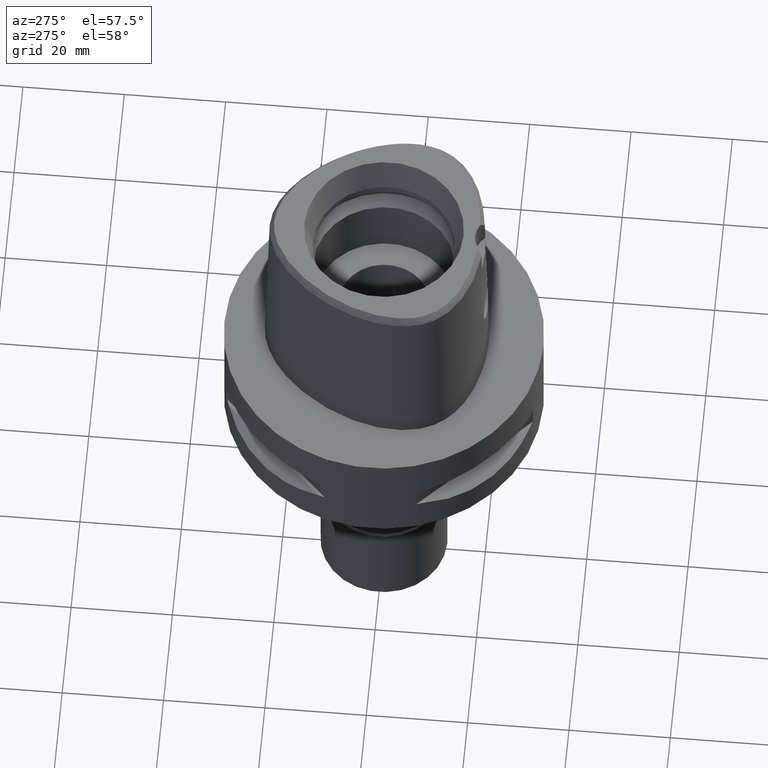
[diagram: clean part render]
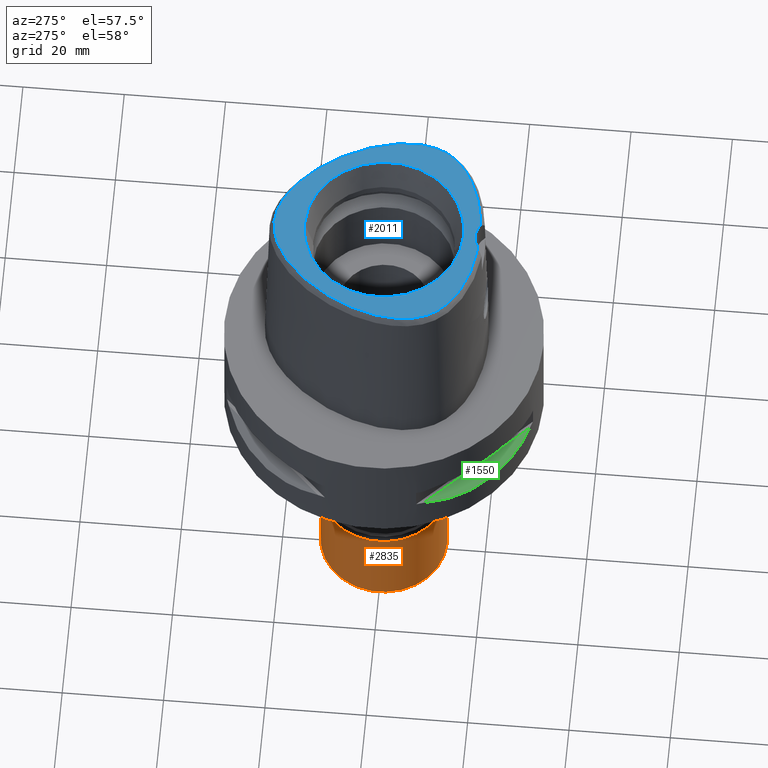
[diagram: same view with three faces highlighted in distinct colors, each labeled with its STEP entity id]
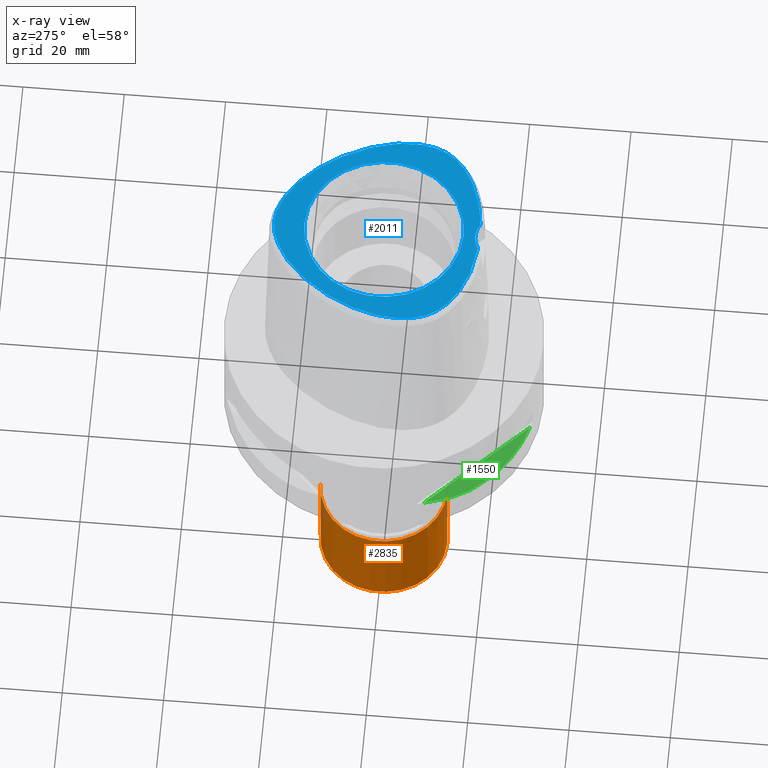
[diagram: x-ray of the same camera — body ghosted, the three highlighted faces saturated]
A machine part, auxiliary view with three faces highlighted in distinct colors.
The next image is the same camera in x-ray (body ghosted, the three faces saturated) — at least one of them is partly hidden behind the body in this view.
Their STEP definitions:

[orange] entity #2835 — the highlighted cylindrical surface (partial cylindrical patch) has radius 12.5 mm, axis along (0, 0, -1).
#87 = VERTEX_POINT ( 'NONE', #3550 ) ;
#200 = ORIENTED_EDGE ( 'NONE', *, *, #4259, .T. ) ;
#230 = ORIENTED_EDGE ( 'NONE', *, *, #3672, .T. ) ;
#245 = DIRECTION ( 'NONE',  ( 0.0000000000000000000, -1.000000000000000000, 0.0000000000000000000 ) ) ;
#264 = DIRECTION ( 'NONE',  ( 0.0000000000000000000, -1.000000000000000000, 0.0000000000000000000 ) ) ;
#346 = AXIS2_PLACEMENT_3D ( 'NONE', #2113, #2845, #245 ) ;
#410 = AXIS2_PLACEMENT_3D ( 'NONE', #1921, #3836, #2706 ) ;
#485 = EDGE_LOOP ( 'NONE', ( #230, #2842, #3767, #200 ) ) ;
#555 = DIRECTION ( 'NONE',  ( 0.0000000000000000000, 0.0000000000000000000, -1.000000000000000000 ) ) ;
#677 = VERTEX_POINT ( 'NONE', #2776 ) ;
#765 = CYLINDRICAL_SURFACE ( 'NONE', #2062, 12.50000000000000000 ) ;
#1015 = VERTEX_POINT ( 'NONE', #4450 ) ;
#1167 = DIRECTION ( 'NONE',  ( 0.0000000000000000000, 0.0000000000000000000, -1.000000000000000000 ) ) ;
#1249 = CARTESIAN_POINT ( 'NONE',  ( 0.0000000000000000000, -12.50000000000000000, -2.000000000000000000 ) ) ;
#1384 = VECTOR ( 'NONE', #555, 1000.000000000000000 ) ;
#1480 = VERTEX_POINT ( 'NONE', #4084 ) ;
#1513 = FACE_OUTER_BOUND ( 'NONE', #485, .T. ) ;
#1921 = CARTESIAN_POINT ( 'NONE',  ( 0.0000000000000000000, 0.0000000000000000000, -20.50000000000000000 ) ) ;
#1963 = DIRECTION ( 'NONE',  ( 0.0000000000000000000, 0.0000000000000000000, -1.000000000000000000 ) ) ;
#2058 = VECTOR ( 'NONE', #1167, 1000.000000000000000 ) ;
#2062 = AXIS2_PLACEMENT_3D ( 'NONE', #3998, #1963, #264 ) ;
#2113 = CARTESIAN_POINT ( 'NONE',  ( 0.0000000000000000000, 0.0000000000000000000, -2.000000000000000000 ) ) ;
#2339 = EDGE_CURVE ( 'NONE', #87, #1480, #3112, .T. ) ;
#2460 = CIRCLE ( 'NONE', #346, 12.50000000000000000 ) ;
#2706 = DIRECTION ( 'NONE',  ( 0.0000000000000000000, 1.000000000000000000, 0.0000000000000000000 ) ) ;
#2776 = CARTESIAN_POINT ( 'NONE',  ( 0.0000000000000000000, 12.50000000000000000, -20.50000000000000000 ) ) ;
#2835 = ADVANCED_FACE ( 'NONE', ( #1513 ), #765, .T. ) ;
#2842 = ORIENTED_EDGE ( 'NONE', *, *, #2339, .F. ) ;
#2845 = DIRECTION ( 'NONE',  ( 0.0000000000000000000, 0.0000000000000000000, -1.000000000000000000 ) ) ;
#3112 = LINE ( 'NONE', #1249, #1384 ) ;
#3550 = CARTESIAN_POINT ( 'NONE',  ( 0.0000000000000000000, -12.50000000000000000, -2.000000000000000000 ) ) ;
#3588 = EDGE_CURVE ( 'NONE', #87, #1015, #2460, .T. ) ;
#3672 = EDGE_CURVE ( 'NONE', #677, #1480, #4593, .T. ) ;
#3767 = ORIENTED_EDGE ( 'NONE', *, *, #3588, .T. ) ;
#3836 = DIRECTION ( 'NONE',  ( 0.0000000000000000000, 0.0000000000000000000, 1.000000000000000000 ) ) ;
#3998 = CARTESIAN_POINT ( 'NONE',  ( 0.0000000000000000000, 0.0000000000000000000, 0.0000000000000000000 ) ) ;
#4084 = CARTESIAN_POINT ( 'NONE',  ( 0.0000000000000000000, -12.50000000000000000, -20.50000000000000000 ) ) ;
#4187 = CARTESIAN_POINT ( 'NONE',  ( 0.0000000000000000000, 12.50000000000000000, -2.000000000000000000 ) ) ;
#4259 = EDGE_CURVE ( 'NONE', #1015, #677, #4271, .T. ) ;
#4271 = LINE ( 'NONE', #4187, #2058 ) ;
#4450 = CARTESIAN_POINT ( 'NONE',  ( 0.0000000000000000000, 12.50000000000000000, -2.000000000000000000 ) ) ;
#4593 = CIRCLE ( 'NONE', #410, 12.50000000000000000 ) ;

[blue] entity #2011 — the highlighted planar face has unit normal (0, 0, 1).
#4 = CARTESIAN_POINT ( 'NONE',  ( -9.524337278002082741, 17.70558492631480974, 37.99999999999495515 ) ) ;
#27 = CARTESIAN_POINT ( 'NONE',  ( 0.0000000000000000000, 0.0000000000000000000, 38.00000000000000000 ) ) ;
#28 = CARTESIAN_POINT ( 'NONE',  ( -15.00295592774084952, -14.82617991125666457, 37.99999999999761258 ) ) ;
#57 = CARTESIAN_POINT ( 'NONE',  ( -15.24692477332508567, 11.25717358966017478, 38.00000000000158451 ) ) ;
#61 = CARTESIAN_POINT ( 'NONE',  ( 1.325020189552928551, 21.61081414409011003, 37.99999999999249667 ) ) ;
#79 = CARTESIAN_POINT ( 'NONE',  ( -12.37132652997173743, -16.34104299088506451, 38.00000000000173372 ) ) ;
#99 = CARTESIAN_POINT ( 'NONE',  ( -16.93638123745217072, -13.22593246128182365, 37.99999999999351985 ) ) ;
#103 = CARTESIAN_POINT ( 'NONE',  ( 18.31883910943282956, -11.58595831188439362, 37.99999999999624123 ) ) ;
#128 = CARTESIAN_POINT ( 'NONE',  ( 19.78323211893058442, -8.541156231036104884, 37.99999999999651834 ) ) ;
#173 = CARTESIAN_POINT ( 'NONE',  ( 16.36283630828729940, -13.76236604534941854, 38.00000000000044764 ) ) ;
#199 = CARTESIAN_POINT ( 'NONE',  ( 7.606839420238130423, -18.00827588386267308, 37.99999999999197087 ) ) ;
#266 = DIRECTION ( 'NONE',  ( 0.0000000000000000000, 1.000000000000000000, 0.0000000000000000000 ) ) ;
#367 = AXIS2_PLACEMENT_3D ( 'NONE', #2131, #3571, #266 ) ;
#377 = CARTESIAN_POINT ( 'NONE',  ( -8.930096025510302127, -17.65000298921670208, 37.99999999999946709 ) ) ;
#396 = DIRECTION ( 'NONE',  ( 0.0000000000000000000, -1.000000000000000000, 0.0000000000000000000 ) ) ;
#397 = CARTESIAN_POINT ( 'NONE',  ( -2.841965291530696103, -18.76757795572144971, 38.00000000000010658 ) ) ;
#419 = CARTESIAN_POINT ( 'NONE',  ( -17.60426951086849456, 7.098774535281554776, 37.99999999999575806 ) ) ;
#443 = CARTESIAN_POINT ( 'NONE',  ( -7.655222869372528827, 19.09452359225932128, 37.99999999999520384 ) ) ;
#468 = CARTESIAN_POINT ( 'NONE',  ( -17.91005512243877718, -12.13778127739642620, 38.00000000000261480 ) ) ;
#484 = CIRCLE ( 'NONE', #869, 15.71487483155999776 ) ;
#493 = CARTESIAN_POINT ( 'NONE',  ( 7.655962789344366470, 19.09402979099463238, 38.00000000000157740 ) ) ;
#539 = CARTESIAN_POINT ( 'NONE',  ( 10.17751632998770894, -17.24426134458748194, 37.99999999999317879 ) ) ;
#560 = CARTESIAN_POINT ( 'NONE',  ( 19.98468477322977677, -7.807876343103702155, 37.99999999999689493 ) ) ;
#727 = CARTESIAN_POINT ( 'NONE',  ( -11.46564124494143933, 15.92741340513346238, 37.99999999999413092 ) ) ;
#753 = CARTESIAN_POINT ( 'NONE',  ( -4.254559144977506868, 20.86660163697322545, 37.99999999999995737 ) ) ;
#772 = CARTESIAN_POINT ( 'NONE',  ( -20.38301517463215617, -3.278344853328121200, 37.99999999999975842 ) ) ;
#798 = CARTESIAN_POINT ( 'NONE',  ( -3.481017203588829378, 21.13509756881307666, 37.99999999999698019 ) ) ;
#824 = CARTESIAN_POINT ( 'NONE',  ( -19.28591707036859404, -9.869682450887232505, 37.99999999999344880 ) ) ;
#854 = CARTESIAN_POINT ( 'NONE',  ( 20.36412151360781664, -5.276385427453941901, 37.99999999999821654 ) ) ;
#869 = AXIS2_PLACEMENT_3D ( 'NONE', #2249, #3467, #1133 ) ;
#878 = CARTESIAN_POINT ( 'NONE',  ( 11.32341394163099935, -16.80569392800608597, 37.99999999998742339 ) ) ;
#903 = CARTESIAN_POINT ( 'NONE',  ( 4.255661039973296589, 20.86618068829746875, 37.99999999998837552 ) ) ;
#927 = CARTESIAN_POINT ( 'NONE',  ( 5.894487344450888067, 20.13186406532232553, 37.99999999998896527 ) ) ;
#947 = CARTESIAN_POINT ( 'NONE',  ( -1.323674540693950963, 21.61098849316148218, 37.99999999999952394 ) ) ;
#950 = CARTESIAN_POINT ( 'NONE',  ( 14.21382211799434181, -15.34284287400470070, 37.99999999999291589 ) ) ;
#1075 = AXIS2_PLACEMENT_3D ( 'NONE', #27, #2267, #396 ) ;
#1127 = CARTESIAN_POINT ( 'NONE',  ( -6.759433772717245326, 19.65454812513146976, 37.99999999999742784 ) ) ;
#1133 = DIRECTION ( 'NONE',  ( 0.0000000000000000000, 1.000000000000000000, 0.0000000000000000000 ) ) ;
#1157 = PLANE ( 'NONE',  #3526 ) ;
#1166 = ORIENTED_EDGE ( 'NONE', *, *, #4114, .F. ) ;
#1181 = CARTESIAN_POINT ( 'NONE',  ( -14.34402387966081349, 12.54761970513123792, 38.00000000000243006 ) ) ;
#1204 = CARTESIAN_POINT ( 'NONE',  ( -19.54919922642205066, -9.228169790568136577, 38.00000000000613909 ) ) ;
#1228 = CARTESIAN_POINT ( 'NONE',  ( 15.72078707640451789, -14.29615620309275670, 37.99999999999649702 ) ) ;
#1253 = CARTESIAN_POINT ( 'NONE',  ( 19.54993126782005675, -9.226212439886642969, 37.99999999999558042 ) ) ;
#1277 = CARTESIAN_POINT ( 'NONE',  ( 16.88599964843511003, 8.518708218770759899, 37.99999999999212719 ) ) ;
#1299 = CARTESIAN_POINT ( 'NONE',  ( 18.79595068776101030, 4.257753965102936355, 37.99999999999529621 ) ) ;
#1388 = EDGE_CURVE ( 'NONE', #1561, #2855, #2476, .T. ) ;
#1476 = CARTESIAN_POINT ( 'NONE',  ( 2.018320379028757827, 21.50256508436593705, 37.99999999999345590 ) ) ;
#1493 = FACE_BOUND ( 'NONE', #1879, .T. ) ;
#1494 = CARTESIAN_POINT ( 'NONE',  ( -2.682279906006999948, -18.78035848609999903, 38.00000000000000000 ) ) ;
#1521 = CARTESIAN_POINT ( 'NONE',  ( -19.94188961899334700, 0.2242544969877390548, 38.00000000000346034 ) ) ;
#1534 = ORIENTED_EDGE ( 'NONE', *, *, #3704, .F. ) ;
#1551 = CARTESIAN_POINT ( 'NONE',  ( -19.78262210840629720, -8.543146992552568264, 38.00000000000000711 ) ) ;
#1553 = CARTESIAN_POINT ( 'NONE',  ( 3.482188079160407845, 21.13472718027925978, 37.99999999999702993 ) ) ;
#1561 = VERTEX_POINT ( 'NONE', #2921 ) ;
#1570 = FACE_OUTER_BOUND ( 'NONE', #4585, .T. ) ;
#1571 = CARTESIAN_POINT ( 'NONE',  ( -13.40435640711768350, 13.76268382997402995, 37.99999999999836575 ) ) ;
#1593 = CARTESIAN_POINT ( 'NONE',  ( -20.15090095365161460, -7.024227649787420980, 38.00000000000306954 ) ) ;
#1595 = CARTESIAN_POINT ( 'NONE',  ( 19.26272899268604277, 2.870227893750354919, 37.99999999999545253 ) ) ;
#1620 = CARTESIAN_POINT ( 'NONE',  ( -0.6498990081535154228, 21.67378274708313768, 37.99999999999304379 ) ) ;
#1624 = CARTESIAN_POINT ( 'NONE',  ( 19.94150023628020918, 0.2261566111948481728, 37.99999999999473488 ) ) ;
#1646 = CARTESIAN_POINT ( 'NONE',  ( 20.40062138795069657, -4.309334958867284904, 37.99999999999761968 ) ) ;
#1687 = CARTESIAN_POINT ( 'NONE',  ( 20.15982952132141293, -1.007721426051199298, 38.00000000000099476 ) ) ;
#1707 = ORIENTED_EDGE ( 'NONE', *, *, #2040, .F. ) ;
#1869 = CARTESIAN_POINT ( 'NONE',  ( -16.88647904405309674, 8.517821442303189272, 38.00000000000266454 ) ) ;
#1879 = EDGE_LOOP ( 'NONE', ( #1707, #1534 ) ) ;
#1889 = CARTESIAN_POINT ( 'NONE',  ( -18.67608643721327866, -11.03561202291020216, 38.00000000000012079 ) ) ;
#1968 = CARTESIAN_POINT ( 'NONE',  ( -20.27898581532227595, -6.181921586190095574, 38.00000000000140687 ) ) ;
#1970 = CARTESIAN_POINT ( 'NONE',  ( 13.40430406168778887, 13.76274261013295863, 37.99999999999890576 ) ) ;
#1996 = CARTESIAN_POINT ( 'NONE',  ( 9.524842839489169322, 17.70516372194478905, 38.00000000000353140 ) ) ;
#2011 = ADVANCED_FACE ( 'NONE', ( #1570, #1493 ), #1157, .T. ) ;
#2040 = EDGE_CURVE ( 'NONE', #4166, #3203, #3682, .T. ) ;
#2044 = CARTESIAN_POINT ( 'NONE',  ( 2.682287482605000051, -18.78036330228999873, 38.00000000000000000 ) ) ;
#2066 = CARTESIAN_POINT ( 'NONE',  ( 2.845098933833613231, -18.76733062685832110, 37.99999999999972999 ) ) ;
#2131 = CARTESIAN_POINT ( 'NONE',  ( 0.0000000000000000000, -23.00000000000000000, 38.00000000000000000 ) ) ;
#2228 = VERTEX_POINT ( 'NONE', #3577 ) ;
#2240 = DIRECTION ( 'NONE',  ( 0.0000000000000000000, 0.0000000000000000000, 1.000000000000000000 ) ) ;
#2242 = CARTESIAN_POINT ( 'NONE',  ( -11.31790883121446178, -16.80796958613218806, 37.99999999999813838 ) ) ;
#2249 = CARTESIAN_POINT ( 'NONE',  ( 0.0000000000000000000, 0.0000000000000000000, 38.00000000000000000 ) ) ;
#2267 = DIRECTION ( 'NONE',  ( 0.0000000000000000000, 0.0000000000000000000, 1.000000000000000000 ) ) ;
#2291 = CARTESIAN_POINT ( 'NONE',  ( -18.24302769442141070, 5.671232572958433416, 37.99999999999193534 ) ) ;
#2315 = CARTESIAN_POINT ( 'NONE',  ( -2.735698246183323690, 21.34559102902468553, 38.00000000000010658 ) ) ;
#2347 = CARTESIAN_POINT ( 'NONE',  ( 0.6513209347957129580, 21.67370899611498558, 37.99999999999607070 ) ) ;
#2367 = CARTESIAN_POINT ( 'NONE',  ( 20.27923816685860459, -6.179850483268751304, 38.00000000000136424 ) ) ;
#2391 = CARTESIAN_POINT ( 'NONE',  ( 6.196495988004103062, -18.31673538864978923, 37.99999999999329958 ) ) ;
#2421 = CARTESIAN_POINT ( 'NONE',  ( 4.715576077242364939, -18.56597918135274838, 37.99999999998804157 ) ) ;
#2438 = CARTESIAN_POINT ( 'NONE',  ( 15.24661770199423572, 11.25762885478427577, 37.99999999999010925 ) ) ;
#2476 = CIRCLE ( 'NONE', #367, 5.000000000000000888 ) ;
#2598 = CARTESIAN_POINT ( 'NONE',  ( -4.706994425064995546, -18.56721852572488274, 38.00000000000191847 ) ) ;
#2612 = ORIENTED_EDGE ( 'NONE', *, *, #3352, .F. ) ;
#2614 = B_SPLINE_CURVE_WITH_KNOTS ( 'NONE', 3,
 ( #2702, #3808, #2347, #61, #1476, #4503, #1553, #903, #4668, #927, #3878, #493, #3189, #1996, #2804, #4694, #4353, #1970, #3115, #2438, #3512, #1277, #3213, #4623, #1299, #1595, #4334, #1624, #1687, #4646, #3955, #1646, #854, #2367, #4718, #560, #128, #1253, #2730, #3485, #2780, #103, #3141, #3935, #4311, #173, #1228, #2755, #950, #4265, #2824, #878, #539, #4286, #199, #2391, #2421, #3581, #2066, #2044 ),
 .UNSPECIFIED., .F., .F.,
 ( 4, 1, 1, 1, 1, 1, 1, 1, 1, 1, 1, 1, 1, 1, 1, 1, 1, 1, 1, 1, 1, 1, 1, 1, 1, 1, 1, 1, 1, 1, 1, 1, 1, 1, 1, 1, 1, 1, 1, 1, 1, 1, 1, 1, 1, 1, 1, 1, 1, 1, 1, 1, 1, 1, 1, 1, 1, 4 ),
 ( 0.0000000000000000000, 0.01775854187129999318, 0.03551708374169992855, 0.05327562561200005486, 0.07103416748239999023, 0.08879270935270000553, 0.1065512512231000519, 0.1243097930933999562, 0.1420683349638000026, 0.1598268768341000179, 0.1775854187044000332, 0.1953439605747999686, 0.2131025024450999839, 0.2308610443155000302, 0.2486195861857999345, 0.2663781280563000120, 0.2841366699266000273, 0.3018952117970000737, 0.3196537536672999780, 0.3374122955377000244, 0.3551708374080000397, 0.3729293792782999439, 0.3906879211486999903, 0.4084464630190000056, 0.4262050048894000520, 0.4439635467596999563, 0.4617220886301000027, 0.4794806305004000180, 0.4972391723707999533, 0.5149977142410999686, 0.5327562561113999839, 0.5505147979818000303, 0.5682733398521000456, 0.5860318817224999810, 0.6037904235927999963, 0.6215489654632000427, 0.6393075073334999470, 0.6570660492038999934, 0.6748245910742000087, 0.6925831329445000240, 0.7103416748149000703, 0.7281002166851999746, 0.7458587585556000210, 0.7636173004259000363, 0.7813758422962999717, 0.7991343841665999870, 0.8168929260370000334, 0.8346514679073000487, 0.8524100097776999840, 0.8701685516479999993, 0.8879270935183000146, 0.9056856353886799660, 0.9234441772589799813, 0.9412027191293600437, 0.9589612609997000270, 0.9767198028700500023, 0.9944783447403919840, 1.000000000000000000 ),
 .UNSPECIFIED. ) ;
#2626 = CARTESIAN_POINT ( 'NONE',  ( -5.058220461389564271, 20.53445508814814247, 37.99999999999528200 ) ) ;
#2648 = CARTESIAN_POINT ( 'NONE',  ( -16.36032397154063389, -13.76458520345062908, 37.99999999999981526 ) ) ;
#2673 = CARTESIAN_POINT ( 'NONE',  ( -12.44116897271224786, 14.89128547409565506, 38.00000000000336797 ) ) ;
#2699 = CARTESIAN_POINT ( 'NONE',  ( -19.98419490692070255, -7.809898894996006646, 38.00000000000324718 ) ) ;
#2702 = CARTESIAN_POINT ( 'NONE',  ( -3.470663397183000013E-11, 21.68728795390000030, 38.00000000000000000 ) ) ;
#2730 = CARTESIAN_POINT ( 'NONE',  ( 19.28677546797498721, -9.867757137506835363, 37.99999999999242561 ) ) ;
#2755 = CARTESIAN_POINT ( 'NONE',  ( 15.00628712263742770, -14.82385870795251037, 37.99999999998912870 ) ) ;
#2780 = CARTESIAN_POINT ( 'NONE',  ( 18.67722910598157782, -11.03372143228117075, 37.99999999999516120 ) ) ;
#2804 = CARTESIAN_POINT ( 'NONE',  ( 10.48999540691186638, 16.86597469869743193, 37.99999999999418776 ) ) ;
#2824 = CARTESIAN_POINT ( 'NONE',  ( 12.37622418510139610, -16.33871033285934260, 37.99999999999244693 ) ) ;
#2855 = VERTEX_POINT ( 'NONE', #3134 ) ;
#2921 = CARTESIAN_POINT ( 'NONE',  ( 2.682287482605000051, -18.78036330228999873, 38.00000000000000000 ) ) ;
#3012 = CARTESIAN_POINT ( 'NONE',  ( -18.31748213707195916, -11.58791794387961360, 37.99999999999782574 ) ) ;
#3036 = CARTESIAN_POINT ( 'NONE',  ( -19.26324493738286137, 2.868570891456874605, 38.00000000000463984 ) ) ;
#3063 = CARTESIAN_POINT ( 'NONE',  ( -13.33457781970421507, -15.85148397417764166, 38.00000000000648015 ) ) ;
#3086 = CARTESIAN_POINT ( 'NONE',  ( -17.45119705494119700, -12.68365517585461433, 38.00000000000032685 ) ) ;
#3115 = CARTESIAN_POINT ( 'NONE',  ( 14.34383722811943151, 12.54786717290049225, 37.99999999999162981 ) ) ;
#3134 = CARTESIAN_POINT ( 'NONE',  ( -2.682279906006999948, -18.78035848609999903, 38.00000000000000000 ) ) ;
#3141 = CARTESIAN_POINT ( 'NONE',  ( 17.91165267839474851, -12.13575389398139492, 38.00000000000010658 ) ) ;
#3187 = CARTESIAN_POINT ( 'NONE',  ( -0.2181979014508594605, 21.68728795389280606, 37.99999999999722888 ) ) ;
#3189 = CARTESIAN_POINT ( 'NONE',  ( 8.578848111818043520, 18.44609846599703573, 37.99999999999545253 ) ) ;
#3203 = VERTEX_POINT ( 'NONE', #3268 ) ;
#3213 = CARTESIAN_POINT ( 'NONE',  ( 17.60373714028564507, 7.099883643193834359, 37.99999999999448619 ) ) ;
#3268 = CARTESIAN_POINT ( 'NONE',  ( 0.0000000000000000000, 15.71487483155999776, 38.00000000000000000 ) ) ;
#3352 = EDGE_CURVE ( 'NONE', #2855, #2228, #4200, .T. ) ;
#3390 = CARTESIAN_POINT ( 'NONE',  ( -3.522896839654032330, -18.70811514173657031, 37.99999999999603517 ) ) ;
#3408 = CARTESIAN_POINT ( 'NONE',  ( -20.30498420086631484, -2.177378896258043817, 38.00000000000444089 ) ) ;
#3434 = CARTESIAN_POINT ( 'NONE',  ( -6.188376196366610849, -18.31830638231376795, 37.99999999999363354 ) ) ;
#3463 = CARTESIAN_POINT ( 'NONE',  ( -10.17136073855314926, -17.24644253470667721, 37.99999999999927525 ) ) ;
#3467 = DIRECTION ( 'NONE',  ( 0.0000000000000000000, 0.0000000000000000000, 1.000000000000000000 ) ) ;
#3483 = CARTESIAN_POINT ( 'NONE',  ( -19.64434054693083453, 1.520253387636241404, 37.99999999999198508 ) ) ;
#3485 = CARTESIAN_POINT ( 'NONE',  ( 18.99619228226488588, -10.46780014453609020, 37.99999999999187139 ) ) ;
#3512 = CARTESIAN_POINT ( 'NONE',  ( 16.09765529146492824, 9.909410920133021605, 37.99999999998832578 ) ) ;
#3526 = AXIS2_PLACEMENT_3D ( 'NONE', #3802, #2240, #3752 ) ;
#3571 = DIRECTION ( 'NONE',  ( 0.0000000000000000000, 0.0000000000000000000, 1.000000000000000000 ) ) ;
#3577 = CARTESIAN_POINT ( 'NONE',  ( -3.470663397183000013E-11, 21.68728795390000030, 38.00000000000000000 ) ) ;
#3581 = CARTESIAN_POINT ( 'NONE',  ( 3.529311563348299874, -18.70747079909714472, 38.00000000000051870 ) ) ;
#3682 = CIRCLE ( 'NONE', #1075, 15.71487483155999776 ) ;
#3704 = EDGE_CURVE ( 'NONE', #3203, #4166, #484, .T. ) ;
#3752 = DIRECTION ( 'NONE',  ( 1.000000000000000000, 0.0000000000000000000, 0.0000000000000000000 ) ) ;
#3753 = CARTESIAN_POINT ( 'NONE',  ( -15.71788912669466320, -14.29843101566524766, 37.99999999999434408 ) ) ;
#3779 = CARTESIAN_POINT ( 'NONE',  ( -20.40060226222940187, -4.311417605381076434, 38.00000000000108713 ) ) ;
#3802 = CARTESIAN_POINT ( 'NONE',  ( 0.0000000000000000000, 0.0000000000000000000, 38.00000000000000000 ) ) ;
#3804 = CARTESIAN_POINT ( 'NONE',  ( -20.36398648679675105, -5.278470727084965120, 37.99999999999837286 ) ) ;
#3808 = CARTESIAN_POINT ( 'NONE',  ( 0.2185816947241669417, 21.68728795389764485, 38.00000000000019185 ) ) ;
#3830 = CARTESIAN_POINT ( 'NONE',  ( -2.017025177696377014, 21.50280829368082181, 37.99999999999782574 ) ) ;
#3855 = CARTESIAN_POINT ( 'NONE',  ( -7.599370508970656246, -18.01010694911240151, 37.99999999999922551 ) ) ;
#3878 = CARTESIAN_POINT ( 'NONE',  ( 6.760281394352282369, 19.65404668909659236, 37.99999999999094058 ) ) ;
#3935 = CARTESIAN_POINT ( 'NONE',  ( 17.45306278053357119, -12.68156296993894827, 38.00000000000144240 ) ) ;
#3955 = CARTESIAN_POINT ( 'NONE',  ( 20.38292172607642527, -3.276278498261042227, 37.99999999999516120 ) ) ;
#4114 = EDGE_CURVE ( 'NONE', #2228, #1561, #2614, .T. ) ;
#4128 = CARTESIAN_POINT ( 'NONE',  ( -16.09805956313452313, 9.908742513517568185, 38.00000000000063238 ) ) ;
#4151 = CARTESIAN_POINT ( 'NONE',  ( -10.48962422759411872, 16.86631853279180149, 38.00000000000284928 ) ) ;
#4166 = VERTEX_POINT ( 'NONE', #4425 ) ;
#4200 = B_SPLINE_CURVE_WITH_KNOTS ( 'NONE', 3,
 ( #1494, #397, #3390, #2598, #3434, #3855, #377, #3463, #2242, #79, #3063, #4620, #28, #3753, #2648, #99, #3086, #468, #3012, #1889, #4575, #824, #1204, #1551, #2699, #1593, #1968, #3804, #3779, #772, #3408, #4595, #1521, #3483, #3036, #4547, #2291, #419, #1869, #4128, #57, #1181, #1571, #2673, #727, #4151, #4, #4524, #443, #1127, #4202, #2626, #753, #798, #2315, #3830, #947, #1620, #3187, #4284 ),
 .UNSPECIFIED., .F., .F.,
 ( 4, 1, 1, 1, 1, 1, 1, 1, 1, 1, 1, 1, 1, 1, 1, 1, 1, 1, 1, 1, 1, 1, 1, 1, 1, 1, 1, 1, 1, 1, 1, 1, 1, 1, 1, 1, 1, 1, 1, 1, 1, 1, 1, 1, 1, 1, 1, 1, 1, 1, 1, 1, 1, 1, 1, 1, 1, 4 ),
 ( 0.0000000000000000000, 0.005420919554200098744, 0.02318126027639999531, 0.04094160099879995407, 0.05870194172099996166, 0.07646228244330000035, 0.09422262316550000794, 0.1119829638877999356, 0.1297433046099999432, 0.1475036453321999508, 0.1652639860544999895, 0.1830243267768000281, 0.2007846674991000668, 0.2185450082212999634, 0.2363053489436000021, 0.2540656896658000097, 0.2718260303881000484, 0.2895863711103000560, 0.3073467118325999836, 0.3251070525547999912, 0.3428673932771000299, 0.3606277339994000686, 0.3783880747216000762, 0.3961484154438998928, 0.4139087561661000114, 0.4316690968884000501, 0.4494294376106000577, 0.4671897783328999854, 0.4849501190552000240, 0.5027104597774000316, 0.5204708004996999593, 0.5382311412219000779, 0.5559914819442000056, 0.5737518226664000132, 0.5915121633886999408, 0.6092725041108999484, 0.6270328448331999871, 0.6447931855555000258, 0.6625535262777000334, 0.6803138669999999610, 0.6980742077221999686, 0.7158345484445000073, 0.7335948891667000149, 0.7513552298890000536, 0.7691155706112000612, 0.7868759113336000199, 0.8046362520558000275, 0.8223965927780999552, 0.8401569335002999628, 0.8579172742224999704, 0.8756776149448000091, 0.8934379556670000166, 0.9111982963893099363, 0.9289586371115700070, 0.9467189778338299666, 0.9644793185560800453, 0.9822396592783400049, 1.000000000000000000 ),
 .UNSPECIFIED. ) ;
#4202 = CARTESIAN_POINT ( 'NONE',  ( -5.893543501601207879, 20.13235399351817279, 38.00000000000433431 ) ) ;
#4265 = CARTESIAN_POINT ( 'NONE',  ( 13.33890749495565586, -15.84912955620285047, 37.99999999999297984 ) ) ;
#4284 = CARTESIAN_POINT ( 'NONE',  ( -3.470663397183000013E-11, 21.68728795390000030, 38.00000000000000000 ) ) ;
#4286 = CARTESIAN_POINT ( 'NONE',  ( 8.936919536467920366, -17.64796721715700301, 37.99999999999442224 ) ) ;
#4311 = CARTESIAN_POINT ( 'NONE',  ( 16.93855157777526799, -13.22377441789655528, 37.99999999998890843 ) ) ;
#4334 = CARTESIAN_POINT ( 'NONE',  ( 19.64387775268630421, 1.522048414458233578, 37.99999999999601386 ) ) ;
#4353 = CARTESIAN_POINT ( 'NONE',  ( 12.44125753246446031, 14.89118158853877105, 37.99999999999506883 ) ) ;
#4425 = CARTESIAN_POINT ( 'NONE',  ( 0.0000000000000000000, -15.71487483155999776, 38.00000000000000000 ) ) ;
#4503 = CARTESIAN_POINT ( 'NONE',  ( 2.736932690727631901, 21.34527940057373741, 37.99999999999587885 ) ) ;
#4524 = CARTESIAN_POINT ( 'NONE',  ( -8.578220530113572551, 18.44656747109114292, 38.00000000000228084 ) ) ;
#4547 = CARTESIAN_POINT ( 'NONE',  ( -18.79649882725195909, 4.256255933891623933, 37.99999999999405276 ) ) ;
#4575 = CARTESIAN_POINT ( 'NONE',  ( -18.99520880204070750, -10.46968343926007883, 37.99999999999913314 ) ) ;
#4585 = EDGE_LOOP ( 'NONE', ( #1166, #2612, #4591 ) ) ;
#4591 = ORIENTED_EDGE ( 'NONE', *, *, #1388, .F. ) ;
#4595 = CARTESIAN_POINT ( 'NONE',  ( -20.16012968311932241, -1.009698174524483516, 38.00000000000341061 ) ) ;
#4620 = CARTESIAN_POINT ( 'NONE',  ( -14.21001600787359109, -15.34519100085642940, 37.99999999999288747 ) ) ;
#4623 = CARTESIAN_POINT ( 'NONE',  ( 18.24247239569772461, 5.672548708072835844, 37.99999999999596412 ) ) ;
#4646 = CARTESIAN_POINT ( 'NONE',  ( 20.30478359881857031, -2.175347700950205798, 37.99999999999439382 ) ) ;
#4668 = CARTESIAN_POINT ( 'NONE',  ( 5.059249257021419588, 20.53399274679699360, 37.99999999998952660 ) ) ;
#4694 = CARTESIAN_POINT ( 'NONE',  ( 11.46587147799912287, 15.92717600803259259, 37.99999999999483435 ) ) ;
#4718 = CARTESIAN_POINT ( 'NONE',  ( 20.15127154947509425, -7.022178451342089289, 38.00000000000051159 ) ) ;

[green] entity #1550 — the highlighted planar face has unit normal (0.3536, 0.3536, -0.866).
#8 = PLANE ( 'NONE',  #1853 ) ;
#119 = VERTEX_POINT ( 'NONE', #2406 ) ;
#158 = CARTESIAN_POINT ( 'NONE',  ( -17.14106442934810204, -26.42800887047570058, -15.43984550238532982 ) ) ;
#209 = CARTESIAN_POINT ( 'NONE',  ( -27.64634172018421410, -15.11986997309601577, -15.11207862403482238 ) ) ;
#335 = FACE_OUTER_BOUND ( 'NONE', #1767, .T. ) ;
#500 = CARTESIAN_POINT ( 'NONE',  ( -17.35163608579889072, -26.29071741523761929, -15.46976201925527761 ) ) ;
#589 = CARTESIAN_POINT ( 'NONE',  ( -26.70521063584532229, -16.70616724745790549, -15.37546661817682292 ) ) ;
#860 = CARTESIAN_POINT ( 'NONE',  ( -21.46242677078364025, -23.08532645888299939, -15.83938991065501867 ) ) ;
#886 = CARTESIAN_POINT ( 'NONE',  ( -20.18579225686653444, -24.23018836745773541, -15.78559396979401974 ) ) ;
#1068 = DIRECTION ( 'NONE',  ( 0.3535533905933054277, 0.3535533905933049836, -0.8660254037844130615 ) ) ;
#1235 = CARTESIAN_POINT ( 'NONE',  ( -29.31542262584746794, -11.58970337494326941, -14.35229357166913999 ) ) ;
#1268 = ORIENTED_EDGE ( 'NONE', *, *, #1491, .F. ) ;
#1283 = CARTESIAN_POINT ( 'NONE',  ( -10.44775724750000023, -29.71690375017999841, -14.05000000000000071 ) ) ;
#1306 = CARTESIAN_POINT ( 'NONE',  ( -14.89252659053665440, -27.86285265927818600, -15.10765629750852135 ) ) ;
#1491 = EDGE_CURVE ( 'NONE', #119, #4506, #2936, .T. ) ;
#1550 = ADVANCED_FACE ( 'NONE', ( #335 ), #8, .F. ) ;
#1628 = B_SPLINE_CURVE_WITH_KNOTS ( 'NONE', 3,
 ( #1719, #1235, #2373, #209, #4292, #3590, #589, #4270, #4651, #3197, #2050, #4340, #860, #886, #3242, #3889, #500, #158, #4703, #3914, #2004, #1306, #4729, #1283 ),
 .UNSPECIFIED., .F., .F.,
 ( 4, 1, 1, 1, 1, 1, 2, 2, 2, 1, 1, 1, 1, 1, 2, 2, 4 ),
 ( 0.0000000000000000000, 0.1250000000000055511, 0.1875000000000083267, 0.2187500000000097977, 0.2343750000000106304, 0.2421875000000108247, 0.2460937500000108524, 0.2500000000000108802, 0.5000000000000087708, 0.6250000000000075495, 0.6875000000000071054, 0.7187500000000067724, 0.7343750000000066613, 0.7421875000000065503, 0.7460937500000062172, 0.7500000000000059952, 1.000000000000000000 ),
 .UNSPECIFIED. ) ;
#1719 = CARTESIAN_POINT ( 'NONE',  ( -29.71690375017999841, -10.44775724750000023, -14.05000000000000071 ) ) ;
#1735 = CARTESIAN_POINT ( 'NONE',  ( -29.71690375017999841, -10.44775724750000023, -14.05000000000000071 ) ) ;
#1767 = EDGE_LOOP ( 'NONE', ( #1268, #3421 ) ) ;
#1853 = AXIS2_PLACEMENT_3D ( 'NONE', #3758, #1068, #3325 ) ;
#2004 = CARTESIAN_POINT ( 'NONE',  ( -16.96123479564984748, -26.54368690921626950, -15.41365572341332424 ) ) ;
#2050 = CARTESIAN_POINT ( 'NONE',  ( -25.32725744469575702, -18.86897208070564247, -15.69588095933118943 ) ) ;
#2189 = DIRECTION ( 'NONE',  ( 0.7071067811865474617, -0.7071067811865474617, 0.0000000000000000000 ) ) ;
#2373 = CARTESIAN_POINT ( 'NONE',  ( -28.62019653468943048, -13.25636937903484203, -14.74888225541266884 ) ) ;
#2406 = CARTESIAN_POINT ( 'NONE',  ( -29.71690375017999841, -10.44775724750000023, -14.05000000000000071 ) ) ;
#2863 = CARTESIAN_POINT ( 'NONE',  ( -10.44775724750000023, -29.71690375017999841, -14.05000000000000071 ) ) ;
#2936 = LINE ( 'NONE', #1735, #4323 ) ;
#3197 = CARTESIAN_POINT ( 'NONE',  ( -26.58330558444411906, -16.89910283486596754, -15.40446471307235754 ) ) ;
#3242 = CARTESIAN_POINT ( 'NONE',  ( -18.59229662065495958, -25.43927894891979946, -15.62866126334684580 ) ) ;
#3325 = DIRECTION ( 'NONE',  ( 0.0000000000000000000, -0.9258200997725358761, -0.3779644730092654448 ) ) ;
#3421 = ORIENTED_EDGE ( 'NONE', *, *, #3936, .T. ) ;
#3590 = CARTESIAN_POINT ( 'NONE',  ( -26.84474411198783628, -16.48208282228858224, -15.34094883777952667 ) ) ;
#3758 = CARTESIAN_POINT ( 'NONE',  ( -5.940194875108000261, -34.22446612257000709, -14.05000000000000071 ) ) ;
#3889 = CARTESIAN_POINT ( 'NONE',  ( -17.76952662672209371, -26.01217882834868433, -15.52665221626257264 ) ) ;
#3914 = CARTESIAN_POINT ( 'NONE',  ( -16.98999780422095540, -26.52527364208602734, -15.41788098766330783 ) ) ;
#3936 = EDGE_CURVE ( 'NONE', #119, #4506, #1628, .T. ) ;
#4270 = CARTESIAN_POINT ( 'NONE',  ( -26.64486562695783789, -16.80193241490531975, -15.38992683735687272 ) ) ;
#4292 = CARTESIAN_POINT ( 'NONE',  ( -27.11872488589304453, -16.03138450078185429, -15.26880420107623237 ) ) ;
#4323 = VECTOR ( 'NONE', #2189, 1000.000000000000114 ) ;
#4340 = CARTESIAN_POINT ( 'NONE',  ( -23.89673728055121416, -20.65093790435243193, -15.83935804901394739 ) ) ;
#4506 = VERTEX_POINT ( 'NONE', #2863 ) ;
#4651 = CARTESIAN_POINT ( 'NONE',  ( -26.60451452154760332, -16.86571563436626064, -15.39949295786003347 ) ) ;
#4703 = CARTESIAN_POINT ( 'NONE',  ( -17.05047092244293694, -26.48642424310493837, -15.42670883407686588 ) ) ;
#4729 = CARTESIAN_POINT ( 'NONE',  ( -12.73197616784617381, -28.91382665370159799, -14.65467361752943809 ) ) ;